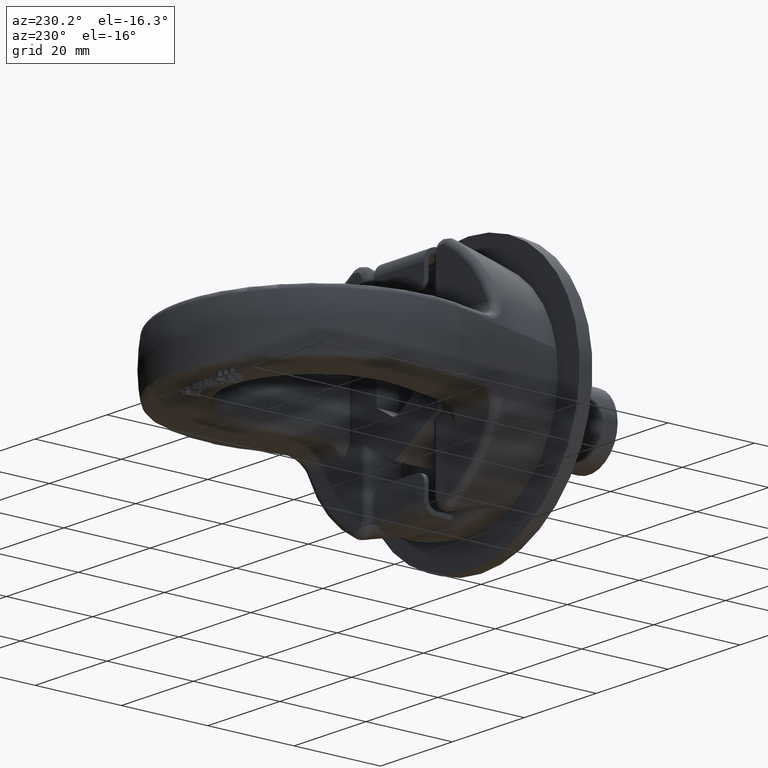
[diagram: clean part render]
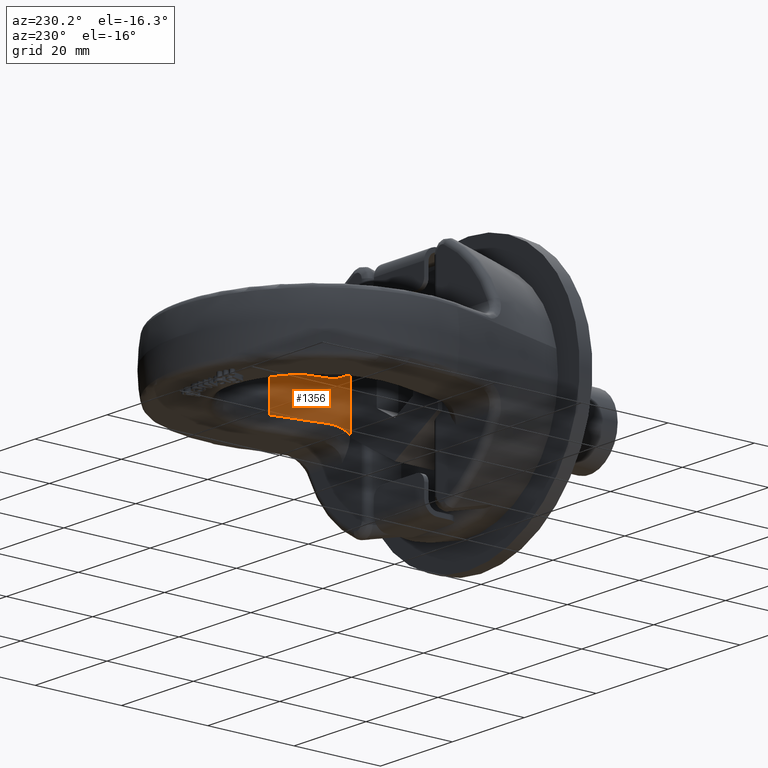
[diagram: same view with one face highlighted and labeled with its STEP entity id]
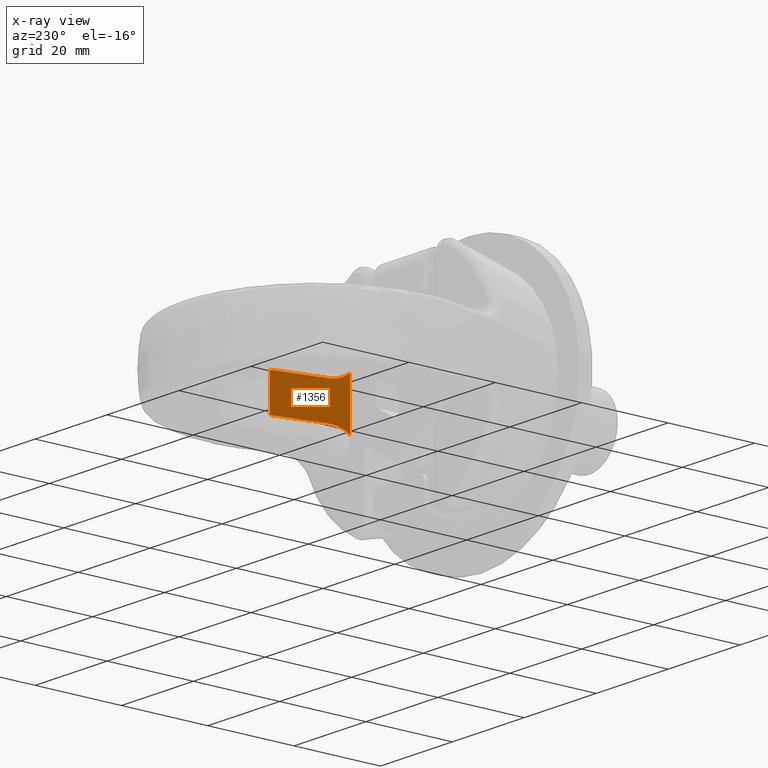
[diagram: x-ray of the same camera — body ghosted, the highlighted face saturated]
A machine part, auxiliary view. The second image highlights one B-rep face of the part: STEP entity #1356.
The next image is the same camera in x-ray: the body ghosted, the highlighted face saturated — about 3% of this face is hidden behind the body in this view.
In plain terms, the highlighted planar face has unit normal (-0.9762, 0.217, 0).
Its self-contained STEP definition (entity closure, byte-faithful):
#1082=ELLIPSE('',#5200,6.45381874463265,6.3);
#1083=ELLIPSE('',#5201,6.45381874463265,6.3);
#1135=FACE_OUTER_BOUND('',#1874,.T.);
#1356=ADVANCED_FACE('',(#1135),#1593,.T.);
#1593=PLANE('',#5202);
#1874=EDGE_LOOP('',(#2888,#2889,#2890,#2891,#2892,#2893));
#2187=LINE('',#6760,#2467);
#2192=LINE('',#6914,#2472);
#2196=LINE('',#6932,#2476);
#2197=LINE('',#6933,#2477);
#2467=VECTOR('',#5521,1.);
#2472=VECTOR('',#5556,1.);
#2476=VECTOR('',#5574,1.);
#2477=VECTOR('',#5575,1.);
#2888=ORIENTED_EDGE('',*,*,#4410,.T.);
#2889=ORIENTED_EDGE('',*,*,#4449,.T.);
#2890=ORIENTED_EDGE('',*,*,#4450,.T.);
#2891=ORIENTED_EDGE('',*,*,#4441,.F.);
#2892=ORIENTED_EDGE('',*,*,#4451,.T.);
#2893=ORIENTED_EDGE('',*,*,#4452,.T.);
#4019=VERTEX_POINT('',#6759);
#4020=VERTEX_POINT('',#6761);
#4048=VERTEX_POINT('',#6915);
#4049=VERTEX_POINT('',#6916);
#4054=VERTEX_POINT('',#6931);
#4055=VERTEX_POINT('',#6934);
#4410=EDGE_CURVE('',#4020,#4019,#2187,.T.);
#4441=EDGE_CURVE('',#4048,#4049,#2192,.T.);
#4449=EDGE_CURVE('',#4019,#4054,#1082,.T.);
#4450=EDGE_CURVE('',#4054,#4049,#2196,.T.);
#4451=EDGE_CURVE('',#4048,#4055,#2197,.T.);
#4452=EDGE_CURVE('',#4055,#4020,#1083,.T.);
#5200=AXIS2_PLACEMENT_3D('',#6930,#5572,#5573);
#5201=AXIS2_PLACEMENT_3D('',#6935,#5576,#5577);
#5202=AXIS2_PLACEMENT_3D('',#6936,#5578,#5579);
#5521=DIRECTION('',(0.,0.,1.));
#5556=DIRECTION('',(0.,0.,1.));
#5572=DIRECTION('',(0.97616624347243,-0.217024111805407,0.));
#5573=DIRECTION('',(-0.217024111805407,-0.97616624347243,0.));
#5574=DIRECTION('',(0.217024111805407,0.97616624347243,-1.24921364680897E-16));
#5575=DIRECTION('',(-0.217024111805407,-0.97616624347243,-6.333894847173E-16));
#5576=DIRECTION('',(0.97616624347243,-0.217024111805407,2.2870703652803E-15));
#5577=DIRECTION('',(0.217024111805407,0.97616624347243,5.08468120036403E-16));
#5578=DIRECTION('',(-0.976166243472429,0.217024111805407,0.));
#5579=DIRECTION('',(-0.217024111805407,-0.97616624347243,0.));
#6759=CARTESIAN_POINT('',(13.591977707196,19.,5.7232785718454));
#6760=CARTESIAN_POINT('',(13.591977707196,19.,35.2));
#6761=CARTESIAN_POINT('',(13.5919777071961,19.,-5.72327857184538));
#6914=CARTESIAN_POINT('',(17.0829092607675,34.7020780434054,35.2));
#6915=CARTESIAN_POINT('',(17.0829092607675,34.7020780434054,-4.19999999999997));
#6916=CARTESIAN_POINT('',(17.0829092607675,34.7020780434054,4.20000000000001));
#6930=CARTESIAN_POINT('',(14.5052062679805,23.1076675130551,10.5));
#6931=CARTESIAN_POINT('',(14.5052062679805,23.1076675130551,4.20000000000001));
#6932=CARTESIAN_POINT('',(17.0829092607675,34.7020780434054,4.20000000000001));
#6933=CARTESIAN_POINT('',(14.3701078631999,22.5,-4.19999999999997));
#6934=CARTESIAN_POINT('',(14.5052062679805,23.1076675130551,-4.19999999999997));
#6935=CARTESIAN_POINT('',(14.5052062679805,23.1076675130551,-10.5));
#6936=CARTESIAN_POINT('',(13.591977707196,19.,35.2));